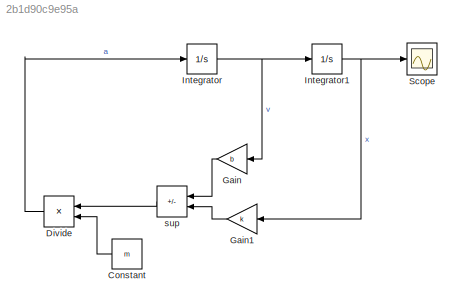
MODEL slx_2b1d90c9e95a
KIND model
CONFIG AbsTol = auto
CONFIG EnableMultiTasking = off
CONFIG FixedStep = auto
CONFIG MaxStep = 1e-3
CONFIG MinStep = auto
CONFIG RelTol = 1e-3
CONFIG SampleTimeConstraint = Unconstrained
CONFIG SolverName = VariableStepAuto
CONFIG StartTime = 0.0
CONFIG StopTime = 10.0
BLOCK [Constant] Constant
  NameLocation = top
  Value = m
BLOCK [Product] Divide
  Inputs = */
  NameLocation = top
  Ports = [2, 1]
BLOCK [Gain] Gain
  Gain = b
  NameLocation = top
BLOCK [Gain] Gain1
  Gain = k
  NameLocation = top
BLOCK [Integrator] Integrator
  Ports = [1, 1]
BLOCK [Integrator] Integrator1
  InitialCondition = x0
  Ports = [1, 1]
BLOCK [Scope] Scope
  Floating = off
  NumInputPorts = 1
  Ports = [1]
  ScopeSpecificationString = Simulink.scopes.TimeScopeBlockCfg('CurrentConfiguration', extmgr.ConfigurationSet(extmgr.Configuration('Core','General UI',true),extmgr.Configuration('Core','Source UI',true),extmgr.Configuration('Sources','WiredSimulink',true),extmgr.Configuration('Visuals','Time Domain',true,'SerializedDisplays',{struct('MinYLimReal','-1.01218','MaxYLimReal','1.22358','YLabelReal','','MinYLimMag','0.00000','MaxY...<+1360ch>
BLOCK [Sum] sup
  IconShape = rectangular
  Inputs = --
  NameLocation = top
  Ports = [2, 1]
LINE Constant:1 -> Divide:2
LINE Divide:1 -> Integrator:1
LINE Gain1:1 -> sup:2
LINE Gain:1 -> sup:1
NET Integrator1:1 -> Gain1:1, Scope:1
NET Integrator:1 -> Gain:1, Integrator1:1
LINE sup:1 -> Divide:1
note: NET lines group one-source signal fan-out (src -> all destinations, sorted); 1:1 wires keep LINE
